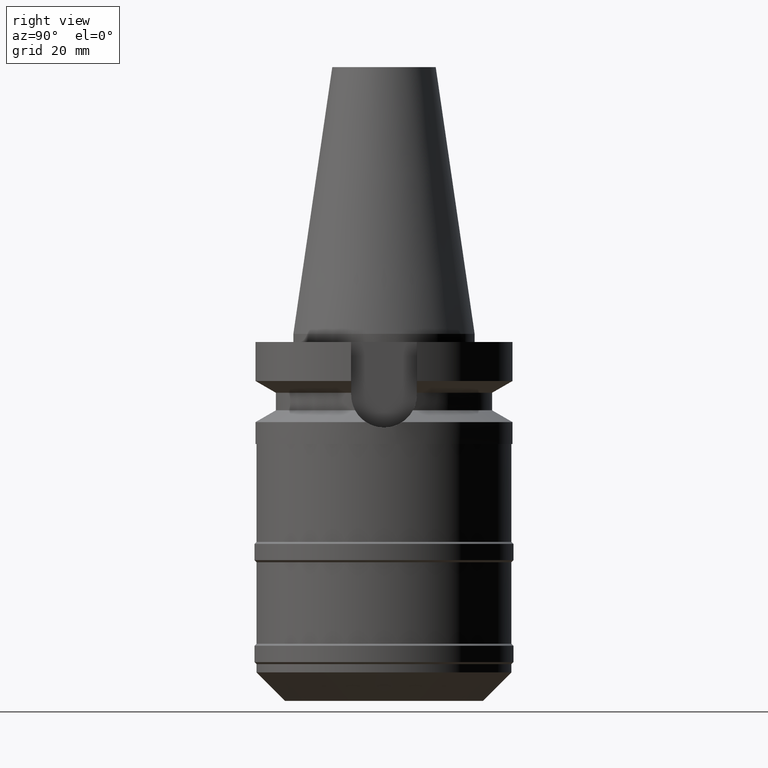
[diagram: clean part render]
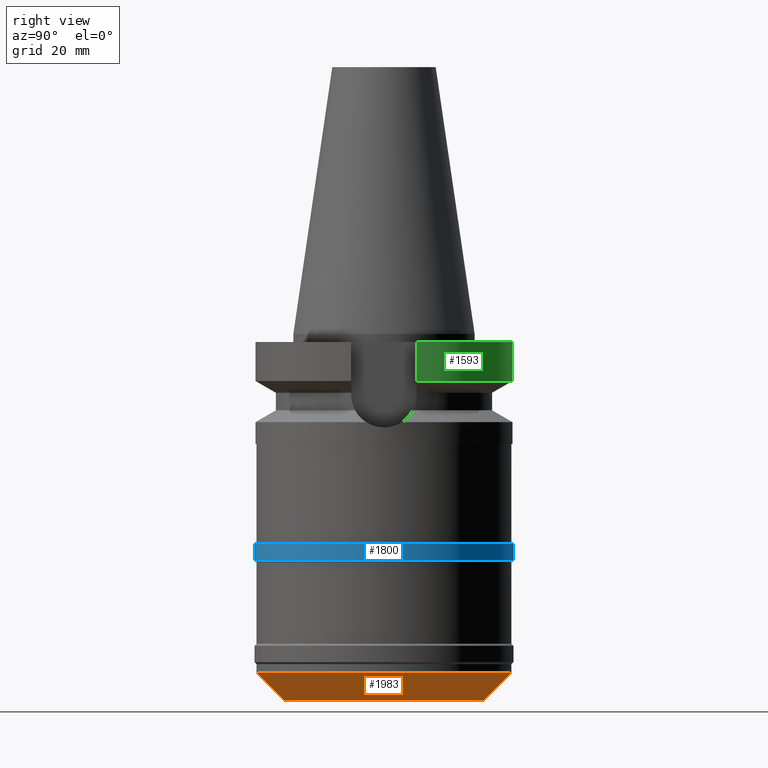
[diagram: same view with three faces highlighted in distinct colors, each labeled with its STEP entity id]
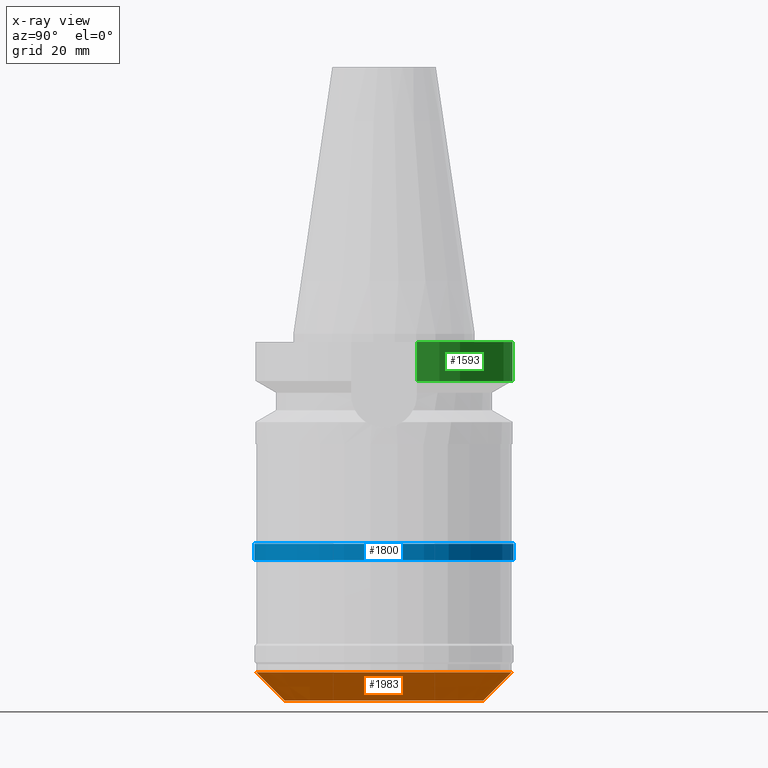
[diagram: x-ray of the same camera — body ghosted, the three highlighted faces saturated]
A machine part, right view with three faces highlighted in distinct colors.
The next image is the same camera in x-ray (body ghosted, the three faces saturated) — at least one of them is partly hidden behind the body in this view.
Their STEP definitions:

[orange] entity #1983 — the highlighted conical surface has half-angle 45 deg.
#915=DIRECTION('',(0.E0,-7.071067811865E-1,-7.071067811865E-1));
#916=VECTOR('',#915,9.899494936612E0);
#917=CARTESIAN_POINT('',(0.E0,3.125E1,-8.3E1));
#918=LINE('',#917,#916);
#922=CARTESIAN_POINT('',(0.E0,0.E0,-8.3E1));
#923=DIRECTION('',(0.E0,0.E0,1.E0));
#924=DIRECTION('',(0.E0,-1.E0,0.E0));
#925=AXIS2_PLACEMENT_3D('',#922,#923,#924);
#938=DIRECTION('',(0.E0,7.071067811865E-1,-7.071067811865E-1));
#939=VECTOR('',#938,9.899494936612E0);
#940=CARTESIAN_POINT('',(0.E0,-3.125E1,-8.3E1));
#941=LINE('',#940,#939);
#945=CARTESIAN_POINT('',(0.E0,0.E0,-9.E1));
#946=DIRECTION('',(0.E0,0.E0,1.E0));
#947=DIRECTION('',(0.E0,-1.E0,0.E0));
#948=AXIS2_PLACEMENT_3D('',#945,#946,#947);
#1145=CARTESIAN_POINT('',(0.E0,-2.425E1,-9.E1));
#1146=CARTESIAN_POINT('',(0.E0,2.425E1,-9.E1));
#1147=VERTEX_POINT('',#1145);
#1148=VERTEX_POINT('',#1146);
#1149=CARTESIAN_POINT('',(0.E0,3.125E1,-8.3E1));
#1150=VERTEX_POINT('',#1149);
#1151=CARTESIAN_POINT('',(0.E0,-3.125E1,-8.3E1));
#1152=VERTEX_POINT('',#1151);
#1969=CARTESIAN_POINT('',(0.E0,0.E0,-8.65E1));
#1970=DIRECTION('',(0.E0,0.E0,1.E0));
#1971=DIRECTION('',(0.E0,1.E0,0.E0));
#1972=AXIS2_PLACEMENT_3D('',#1969,#1970,#1971);
#1973=CONICAL_SURFACE('',#1972,2.775E1,4.5E1);
#1975=ORIENTED_EDGE('',*,*,#1974,.T.);
#1977=ORIENTED_EDGE('',*,*,#1976,.F.);
#1979=ORIENTED_EDGE('',*,*,#1978,.F.);
#1980=ORIENTED_EDGE('',*,*,#1962,.T.);
#1981=EDGE_LOOP('',(#1975,#1977,#1979,#1980));
#1982=FACE_OUTER_BOUND('',#1981,.F.);
#926=CIRCLE('',#925,3.125E1);
#949=CIRCLE('',#948,2.425E1);
#1962=EDGE_CURVE('',#1152,#1150,#926,.T.);
#1974=EDGE_CURVE('',#1150,#1148,#918,.T.);
#1976=EDGE_CURVE('',#1147,#1148,#949,.T.);
#1978=EDGE_CURVE('',#1152,#1147,#941,.T.);
#1983=ADVANCED_FACE('',(#1982),#1973,.T.);

[blue] entity #1800 — the highlighted cylindrical surface (partial cylindrical patch) has radius 31.75 mm, axis along (0, 0, -1).
#682=CARTESIAN_POINT('',(0.E0,0.E0,-5.15E1));
#683=DIRECTION('',(0.E0,0.E0,-1.E0));
#684=DIRECTION('',(0.E0,1.E0,0.E0));
#685=AXIS2_PLACEMENT_3D('',#682,#683,#684);
#721=DIRECTION('',(0.E0,0.E0,-1.E0));
#722=VECTOR('',#721,4.E0);
#723=CARTESIAN_POINT('',(0.E0,-3.175E1,-5.15E1));
#724=LINE('',#723,#722);
#728=DIRECTION('',(0.E0,0.E0,-1.E0));
#729=VECTOR('',#728,4.E0);
#730=CARTESIAN_POINT('',(0.E0,3.175E1,-5.15E1));
#731=LINE('',#730,#729);
#750=CARTESIAN_POINT('',(0.E0,0.E0,-5.55E1));
#751=DIRECTION('',(0.E0,0.E0,1.E0));
#752=DIRECTION('',(0.E0,-1.E0,0.E0));
#753=AXIS2_PLACEMENT_3D('',#750,#751,#752);
#1173=CARTESIAN_POINT('',(0.E0,3.175E1,-5.55E1));
#1174=VERTEX_POINT('',#1173);
#1175=CARTESIAN_POINT('',(0.E0,-3.175E1,-5.55E1));
#1176=VERTEX_POINT('',#1175);
#1177=CARTESIAN_POINT('',(0.E0,3.175E1,-5.15E1));
#1178=VERTEX_POINT('',#1177);
#1179=CARTESIAN_POINT('',(0.E0,-3.175E1,-5.15E1));
#1180=VERTEX_POINT('',#1179);
#1788=CARTESIAN_POINT('',(0.E0,2.120720862083E-14,7.317E1));
#1789=DIRECTION('',(0.E0,0.E0,-1.E0));
#1790=DIRECTION('',(0.E0,-1.E0,0.E0));
#1791=AXIS2_PLACEMENT_3D('',#1788,#1789,#1790);
#1792=CYLINDRICAL_SURFACE('',#1791,3.175E1);
#1793=ORIENTED_EDGE('',*,*,#1778,.T.);
#1795=ORIENTED_EDGE('',*,*,#1794,.F.);
#1796=ORIENTED_EDGE('',*,*,#1781,.F.);
#1797=ORIENTED_EDGE('',*,*,#1752,.F.);
#1798=EDGE_LOOP('',(#1793,#1795,#1796,#1797));
#1799=FACE_OUTER_BOUND('',#1798,.F.);
#686=CIRCLE('',#685,3.175E1);
#754=CIRCLE('',#753,3.175E1);
#1752=EDGE_CURVE('',#1178,#1180,#686,.T.);
#1778=EDGE_CURVE('',#1178,#1174,#731,.T.);
#1781=EDGE_CURVE('',#1180,#1176,#724,.T.);
#1794=EDGE_CURVE('',#1176,#1174,#754,.T.);
#1800=ADVANCED_FACE('',(#1799),#1792,.T.);

[green] entity #1593 — the highlighted cylindrical surface (partial cylindrical patch) has radius 31.5 mm, axis along (0, 0, -1).
#108=CARTESIAN_POINT('',(0.E0,2.120720862083E-14,-2.E0));
#109=DIRECTION('',(0.E0,0.E0,-1.E0));
#110=DIRECTION('',(-9.667943721520E-1,2.555555555556E-1,0.E0));
#111=AXIS2_PLACEMENT_3D('',#108,#109,#110);
#116=CARTESIAN_POINT('',(0.E0,2.120720862083E-14,-2.E0));
#117=DIRECTION('',(0.E0,0.E0,-1.E0));
#118=DIRECTION('',(0.E0,1.E0,0.E0));
#119=AXIS2_PLACEMENT_3D('',#116,#117,#118);
#344=CARTESIAN_POINT('',(3.045402291388E1,8.049999277073E0,-1.156551216392E1));
#393=CARTESIAN_POINT('',(-3.045402162716E1,8.050004144883E0,-1.156546831733E1));
#414=CARTESIAN_POINT('',(0.E0,1.065333950388E-14,-1.156550565267E1));
#415=DIRECTION('',(0.E0,0.E0,1.E0));
#416=DIRECTION('',(9.667943721520E-1,2.555555555555E-1,0.E0));
#417=AXIS2_PLACEMENT_3D('',#414,#415,#416);
#422=CARTESIAN_POINT('',(0.E0,1.065333950388E-14,-1.156550565267E1));
#423=DIRECTION('',(0.E0,0.E0,1.E0));
#424=DIRECTION('',(0.E0,1.E0,0.E0));
#425=AXIS2_PLACEMENT_3D('',#422,#423,#424);
#430=DIRECTION('',(1.145401807374E-7,4.333173334222E-7,-9.999999999999E-1));
#431=VECTOR('',#430,9.565468317328E0);
#432=CARTESIAN_POINT('',(-3.045402272279E1,8.05E0,-2.E0));
#433=LINE('',#432,#431);
#437=DIRECTION('',(-1.997724555010E-8,7.557635059120E-8,1.E0));
#438=VECTOR('',#437,9.565512163917E0);
#439=CARTESIAN_POINT('',(3.045402291388E1,8.049999277073E0,-1.156551216392E1));
#440=LINE('',#439,#438);
#1248=CARTESIAN_POINT('',(-3.045402272279E1,8.05E0,-2.E0));
#1249=VERTEX_POINT('',#1248);
#1250=CARTESIAN_POINT('',(-3.046064939756E-14,3.15E1,-2.E0));
#1251=CARTESIAN_POINT('',(3.045402272279E1,8.05E0,-2.E0));
#1252=VERTEX_POINT('',#1250);
#1253=VERTEX_POINT('',#1251);
#1270=VERTEX_POINT('',#393);
#1275=VERTEX_POINT('',#344);
#1276=CARTESIAN_POINT('',(0.E0,3.15E1,-1.156550565267E1));
#1277=VERTEX_POINT('',#1276);
#1580=CARTESIAN_POINT('',(0.E0,2.120720862083E-14,7.317E1));
#1581=DIRECTION('',(0.E0,0.E0,-1.E0));
#1582=DIRECTION('',(0.E0,-1.E0,0.E0));
#1583=AXIS2_PLACEMENT_3D('',#1580,#1581,#1582);
#1584=CYLINDRICAL_SURFACE('',#1583,3.15E1);
#1585=ORIENTED_EDGE('',*,*,#1555,.T.);
#1586=ORIENTED_EDGE('',*,*,#1575,.F.);
#1587=ORIENTED_EDGE('',*,*,#1573,.F.);
#1588=ORIENTED_EDGE('',*,*,#1517,.T.);
#1589=ORIENTED_EDGE('',*,*,#1363,.F.);
#1590=ORIENTED_EDGE('',*,*,#1361,.F.);
#1591=EDGE_LOOP('',(#1585,#1586,#1587,#1588,#1589,#1590));
#1592=FACE_OUTER_BOUND('',#1591,.F.);
#112=CIRCLE('',#111,3.15E1);
#120=CIRCLE('',#119,3.15E1);
#418=CIRCLE('',#417,3.15E1);
#426=CIRCLE('',#425,3.15E1);
#1361=EDGE_CURVE('',#1249,#1252,#112,.T.);
#1363=EDGE_CURVE('',#1252,#1253,#120,.T.);
#1517=EDGE_CURVE('',#1275,#1253,#440,.T.);
#1555=EDGE_CURVE('',#1249,#1270,#433,.T.);
#1573=EDGE_CURVE('',#1275,#1277,#418,.T.);
#1575=EDGE_CURVE('',#1277,#1270,#426,.T.);
#1593=ADVANCED_FACE('',(#1592),#1584,.T.);